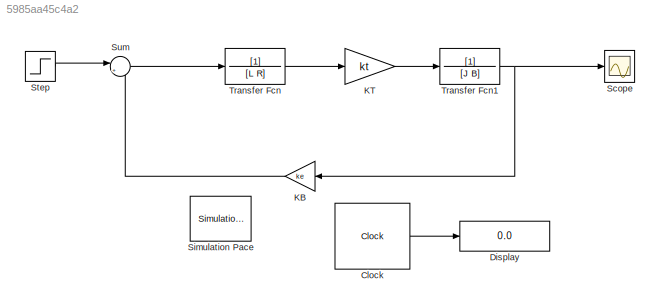
MODEL slx_5985aa45c4a2
KIND model
CONFIG AbsTol = auto
CONFIG FixedStep = auto
CONFIG MaxStep = auto
CONFIG MinStep = auto
CONFIG RelTol = 1e-3
CONFIG SampleTimeConstraint = Unconstrained
CONFIG Solver = VariableStepAuto
CONFIG SolverMode = Auto
CONFIG SolverName = VariableStepAuto
CONFIG StartTime = 0.0
CONFIG StopTime = 5
BLOCK [Clock] Clock
  Decimation = 1
  DisplayTime = on
BLOCK [Display] Display
  Decimation = 1
  Ports = [1]
BLOCK [Gain] KB
  Gain = ke
  OutDataTypeStr = Inherit: Inherit via internal rule
  ParamDataTypeStr = Inherit: Inherit via internal rule
  SaturateOnIntegerOverflow = off
BLOCK [Gain] KT
  Gain = kt
  OutDataTypeStr = Inherit: Inherit via internal rule
  ParamDataTypeStr = Inherit: Inherit via internal rule
  SaturateOnIntegerOverflow = off
BLOCK [Scope] Scope
  Ports = [1]
  ScopeSpecificationString = Simulink.scopes.TimeScopeBlockCfg('CurrentConfiguration', extmgr.ConfigurationSet(extmgr.Configuration('Core','General UI',true),extmgr.Configuration('Core','Source UI',true),extmgr.Configuration('Sources','WiredSimulink',true),extmgr.Configuration('Visuals','Time Domain',true,'SerializedDisplays',{struct('MinYLimReal','0.00000','MaxYLimReal','1.5','YLabelReal','','MinYLimMag','0.00000','MaxYLimMa...<+1415ch>
BLOCK [Reference] Simulation Pace  REF=aerolibanimutils/Simulation Pace
  AttributesFormatString = %<SleepMode>\n%<SimulationPace> sec/sec
  Ports = []
  SourceBlock = aerolibanimutils/Simulation Pace
  SourceType = Simulation Pace
BLOCK [Step] Step
  Time = 0
BLOCK [Sum] Sum
  IconShape = round
  InputSameDT = off
  Inputs = |+-
  OutDataTypeStr = Inherit: Inherit via internal rule
  Ports = [2, 1]
  SaturateOnIntegerOverflow = off
BLOCK [TransferFcn] Transfer Fcn
  Denominator = [L R]
BLOCK [TransferFcn] Transfer Fcn1
  Denominator = [J B]
LINE Clock:1 -> Display:1
LINE KB:1 -> Sum:2
LINE KT:1 -> Transfer Fcn1:1
LINE Step:1 -> Sum:1
LINE Sum:1 -> Transfer Fcn:1
NET Transfer Fcn1:1 -> KB:1, Scope:1
LINE Transfer Fcn:1 -> KT:1
note: NET lines group one-source signal fan-out (src -> all destinations, sorted); 1:1 wires keep LINE
